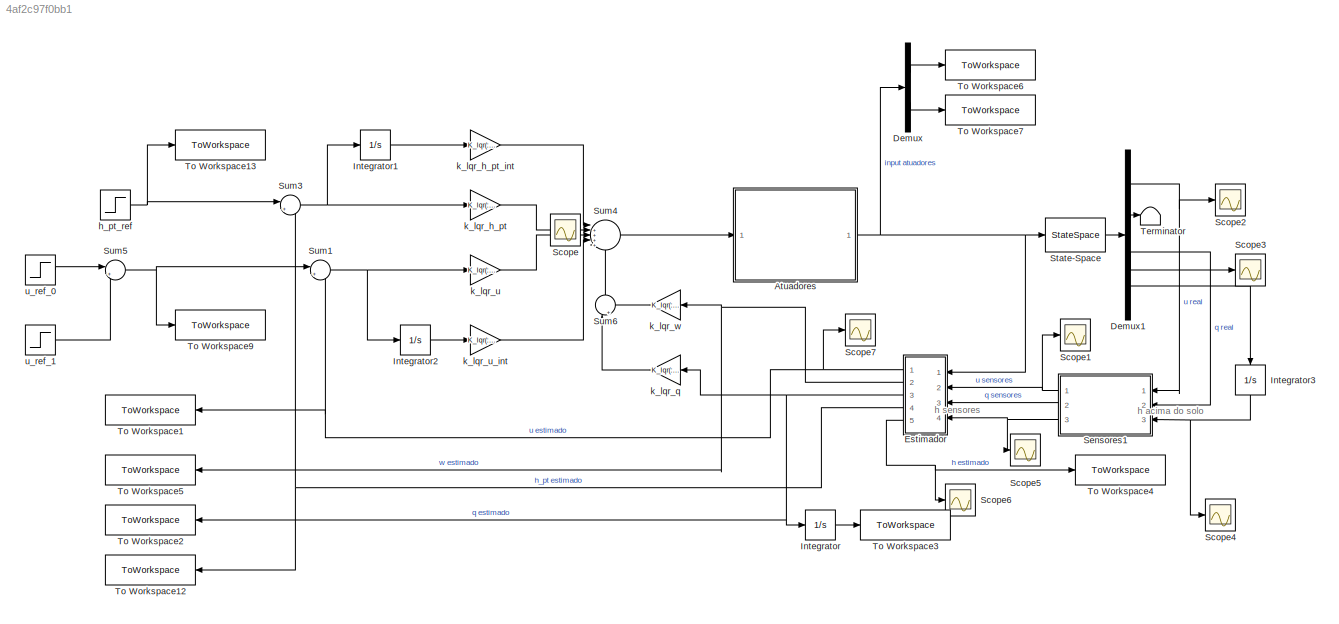
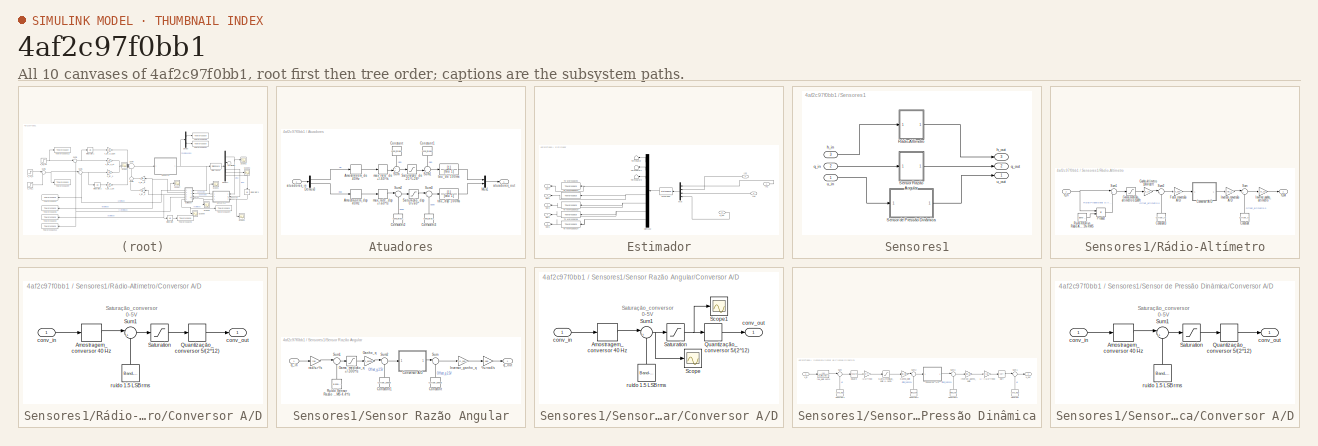
[diagram: thumbnail index - all 10 canvases of the model, root first then tree order]
MODEL slx_4af2c97f0bb1
KIND model
CONFIG AbsTol = auto
CONFIG EnableMultiTasking = off
CONFIG FixedStep = auto
CONFIG MaxStep = auto
CONFIG MinStep = auto
CONFIG RelTol = 1e-3
CONFIG SampleTimeConstraint = Unconstrained
CONFIG SolverName = VariableStepAuto
CONFIG StartTime = 0.0
CONFIG StopTime = 100
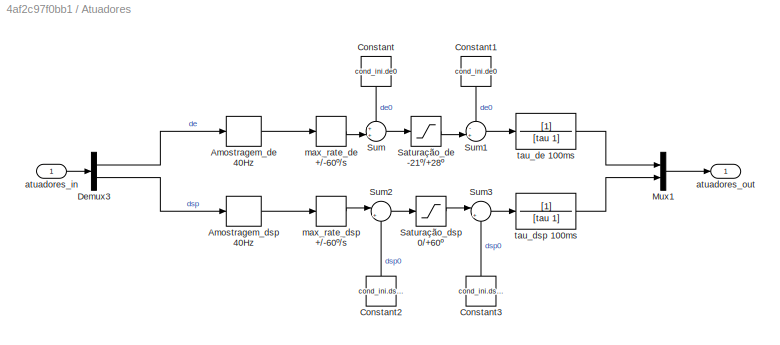
BLOCK [SubSystem] Atuadores
  Ports = [1, 1]
  RequestExecContextInheritance = off
BLOCK [RateLimiter] Atuadores/ max_rate_de +//-60º//s
  FallingSlewLimit = -vel_max_at*deg
  RisingSlewLimit = vel_max_at*deg
  SampleTimeMode = inherited
BLOCK [RateLimiter] Atuadores/ max_rate_dsp +//-60º//s
  FallingSlewLimit = -vel_max_at*deg
  RisingSlewLimit = vel_max_at*deg
  SampleTimeMode = inherited
BLOCK [ZeroOrderHold] Atuadores/Amostragem_de 40Hz
  SampleTime = 1/f_amost
BLOCK [ZeroOrderHold] Atuadores/Amostragem_dsp 40Hz
  SampleTime = 1/f_amost
BLOCK [Constant] Atuadores/Constant
  NameLocation = left
  Value = cond_ini.de0
BLOCK [Constant] Atuadores/Constant1
  NameLocation = left
  Value = cond_ini.de0
BLOCK [Constant] Atuadores/Constant2
  NameLocation = right
  Value = cond_ini.dsp0
BLOCK [Constant] Atuadores/Constant3
  NameLocation = right
  Value = cond_ini.dsp0
BLOCK [Demux] Atuadores/Demux3
  Outputs = 2
  Ports = [1, 2]
BLOCK [Mux] Atuadores/Mux1
  DisplayOption = bar
  Inputs = 2
  Ports = [2, 1]
BLOCK [Saturate] Atuadores/Saturação_de -21º//+28º
  LowerLimit = max_deflec.demin
  UpperLimit = max_deflec.demax
BLOCK [Saturate] Atuadores/Saturação_dsp 0//+60º
  LowerLimit = 0
  UpperLimit = max_deflec.spmax
BLOCK [Sum] Atuadores/Sum
  Inputs = ++|
  Ports = [2, 1]
BLOCK [Sum] Atuadores/Sum1
  Inputs = -+|
  Ports = [2, 1]
BLOCK [Sum] Atuadores/Sum2
  Inputs = |++
  Ports = [2, 1]
BLOCK [Sum] Atuadores/Sum3
  Inputs = |+-
  Ports = [2, 1]
BLOCK [Inport] Atuadores/atuadores_in
BLOCK [Outport] Atuadores/atuadores_out
BLOCK [TransferFcn] Atuadores/tau_de 100ms
  Denominator = [tau 1]
BLOCK [TransferFcn] Atuadores/tau_dsp 100ms
  Denominator = [tau 1]
BLOCK [Demux] Demux
  Outputs = 2
  Ports = [1, 2]
BLOCK [Demux] Demux1
  Ports = [1, 4]
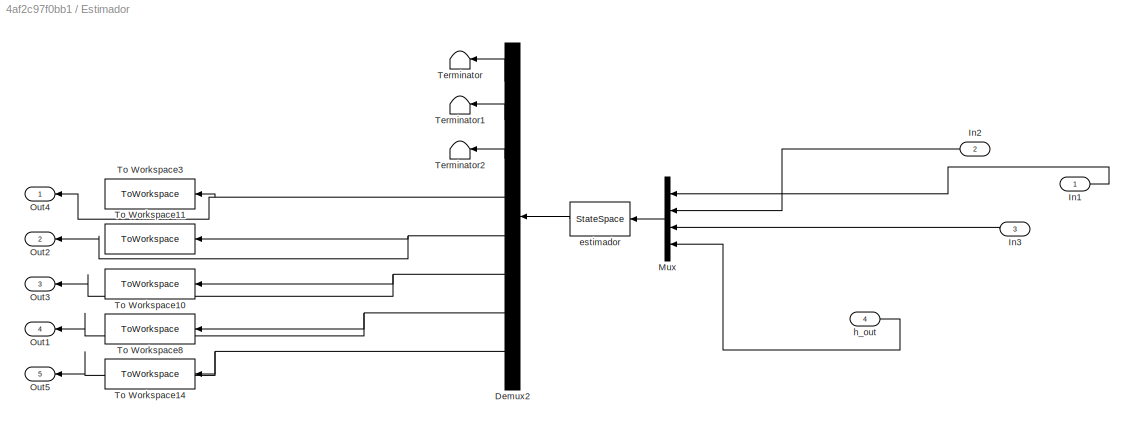
BLOCK [SubSystem] Estimador
  NameLocation = top
  Ports = [4, 5]
  RequestExecContextInheritance = off
BLOCK [Demux] Estimador/Demux2
  NameLocation = top
  Outputs = 8
  Ports = [1, 8]
BLOCK [Inport] Estimador/In1
BLOCK [Inport] Estimador/In2
  Port = 2
BLOCK [Inport] Estimador/In3
  Port = 3
BLOCK [Mux] Estimador/Mux
  DisplayOption = bar
  NameLocation = top
  Ports = [4, 1]
BLOCK [Outport] Estimador/Out1
  NameLocation = top
  Port = 4
BLOCK [Outport] Estimador/Out2
  Port = 2
BLOCK [Outport] Estimador/Out3
  Port = 3
BLOCK [Outport] Estimador/Out4
  NameLocation = top
BLOCK [Outport] Estimador/Out5
  NameLocation = top
  Port = 5
BLOCK [Terminator] Estimador/Terminator
  NameLocation = top
BLOCK [Terminator] Estimador/Terminator1
  NameLocation = top
BLOCK [Terminator] Estimador/Terminator2
  NameLocation = top
BLOCK [ToWorkspace] Estimador/To Workspace10
  FixptAsFi = on
  MaxDataPoints = inf
  NameLocation = top
  Ports = [1]
  SampleTime = -1
  VariableName = q_e
BLOCK [ToWorkspace] Estimador/To Workspace11
  FixptAsFi = on
  MaxDataPoints = inf
  NameLocation = top
  Ports = [1]
  SampleTime = -1
  VariableName = w_e
BLOCK [ToWorkspace] Estimador/To Workspace14
  FixptAsFi = on
  MaxDataPoints = inf
  NameLocation = top
  Ports = [1]
  SampleTime = -1
  VariableName = h_e
BLOCK [ToWorkspace] Estimador/To Workspace3
  FixptAsFi = on
  MaxDataPoints = inf
  NameLocation = top
  Ports = [1]
  SampleTime = -1
  VariableName = u_e
BLOCK [ToWorkspace] Estimador/To Workspace8
  FixptAsFi = on
  MaxDataPoints = inf
  NameLocation = top
  Ports = [1]
  SampleTime = -1
  VariableName = h_pt_e
BLOCK [StateSpace] Estimador/estimador
  A = ae
  B = be
  C = ce
  D = de
  InitialCondition = x0_e
  NameLocation = top
  Ports = [1, 1]
BLOCK [Inport] Estimador/h_out
  Port = 4
BLOCK [Integrator] Integrator
  InitialCondition = cond_ini.tt0
  Ports = [1, 1]
BLOCK [Integrator] Integrator1
  Ports = [1, 1]
BLOCK [Integrator] Integrator2
  Ports = [1, 1]
BLOCK [Integrator] Integrator3
  NameLocation = left
  Ports = [1, 1]
BLOCK [Scope] Scope
  Floating = off
  IOType = viewer
  NumInputPorts = 1
  Ports = []
  ScopeSpecificationString = Simulink.scopes.TimeScopeBlockCfg('CurrentConfiguration', extmgr.ConfigurationSet(extmgr.Configuration('Core','General UI',true),extmgr.Configuration('Core','Source UI',true),extmgr.Configuration('Sources','WiredSimulink',true),extmgr.Configuration('Visuals','Time Domain',true,'SerializedDisplays',{struct('MinYLimReal','-14.17435','MaxYLimReal','7.85489','YLabelReal','','MinYLimMag','0.00000','Max...<+1361ch>
BLOCK [Scope] Scope1
  Floating = off
  NumInputPorts = 1
  Ports = [1]
  ScopeSpecificationString = Simulink.scopes.TimeScopeBlockCfg('CurrentConfiguration', extmgr.ConfigurationSet(extmgr.Configuration('Core','General UI',true),extmgr.Configuration('Core','Source UI',true),extmgr.Configuration('Sources','WiredSimulink',true,'DataLoggingVariableName','ScopeData1'),extmgr.Configuration('Visuals','Time Domain',true),extmgr.Configuration('Tools','Plot Navigation',true),extmgr.Configuration('Tools',...<+40ch>
BLOCK [Scope] Scope2
  Floating = off
  NumInputPorts = 1
  Ports = [1]
  ScopeSpecificationString = Simulink.scopes.TimeScopeBlockCfg('CurrentConfiguration', extmgr.ConfigurationSet(extmgr.Configuration('Core','General UI',true),extmgr.Configuration('Core','Source UI',true),extmgr.Configuration('Sources','WiredSimulink',true,'DataLoggingVariableName','ScopeData2'),extmgr.Configuration('Visuals','Time Domain',true),extmgr.Configuration('Tools','Plot Navigation',true),extmgr.Configuration('Tools',...<+40ch>
BLOCK [Scope] Scope3
  Floating = off
  NumInputPorts = 1
  Ports = [1]
  ScopeSpecificationString = Simulink.scopes.TimeScopeBlockCfg('CurrentConfiguration', extmgr.ConfigurationSet(extmgr.Configuration('Core','General UI',true),extmgr.Configuration('Core','Source UI',true),extmgr.Configuration('Sources','WiredSimulink',true,'DataLoggingVariableName','ScopeData3'),extmgr.Configuration('Visuals','Time Domain',true),extmgr.Configuration('Tools','Plot Navigation',true),extmgr.Configuration('Tools',...<+40ch>
BLOCK [Scope] Scope4
  Floating = off
  NumInputPorts = 1
  Ports = [1]
  ScopeSpecificationString = Simulink.scopes.TimeScopeBlockCfg('CurrentConfiguration', extmgr.ConfigurationSet(extmgr.Configuration('Core','General UI',true),extmgr.Configuration('Core','Source UI',true),extmgr.Configuration('Sources','WiredSimulink',true,'DataLoggingVariableName','ScopeData4'),extmgr.Configuration('Visuals','Time Domain',true),extmgr.Configuration('Tools','Plot Navigation',true),extmgr.Configuration('Tools',...<+40ch>
BLOCK [Scope] Scope5
  Floating = off
  NumInputPorts = 1
  Ports = [1]
  ScopeSpecificationString = Simulink.scopes.TimeScopeBlockCfg('CurrentConfiguration', extmgr.ConfigurationSet(extmgr.Configuration('Core','General UI',true),extmgr.Configuration('Core','Source UI',true),extmgr.Configuration('Sources','WiredSimulink',true,'DataLoggingVariableName','ScopeData5'),extmgr.Configuration('Visuals','Time Domain',true),extmgr.Configuration('Tools','Plot Navigation',true),extmgr.Configuration('Tools',...<+40ch>
BLOCK [Scope] Scope6
  Floating = off
  NumInputPorts = 1
  Ports = [1]
  ScopeSpecificationString = Simulink.scopes.TimeScopeBlockCfg('CurrentConfiguration', extmgr.ConfigurationSet(extmgr.Configuration('Core','General UI',true),extmgr.Configuration('Core','Source UI',true),extmgr.Configuration('Sources','WiredSimulink',true,'DataLoggingVariableName','ScopeData6'),extmgr.Configuration('Visuals','Time Domain',true),extmgr.Configuration('Tools','Plot Navigation',true),extmgr.Configuration('Tools',...<+40ch>
BLOCK [Scope] Scope7
  Floating = off
  NumInputPorts = 1
  Ports = [1]
  ScopeSpecificationString = Simulink.scopes.TimeScopeBlockCfg('CurrentConfiguration', extmgr.ConfigurationSet(extmgr.Configuration('Core','General UI',true),extmgr.Configuration('Core','Source UI',true),extmgr.Configuration('Sources','WiredSimulink',true,'DataLoggingVariableName','ScopeData7'),extmgr.Configuration('Visuals','Time Domain',true),extmgr.Configuration('Tools','Plot Navigation',true),extmgr.Configuration('Tools',...<+40ch>
BLOCK [SubSystem] Sensores1
  NameLocation = top
  Ports = [3, 3]
  RequestExecContextInheritance = off
BLOCK [SubSystem] Sensores1/Rádio-Altímetro
  NameLocation = top
  Ports = [1, 1]
  RequestExecContextInheritance = off
BLOCK [Constant] Sensores1/Rádio-Altímetro/Constant
  NameLocation = right
  Value = Offset_ra
BLOCK [Constant] Sensores1/Rádio-Altímetro/Constant3
  NameLocation = right
  Value = Offset_ra
BLOCK [SubSystem] Sensores1/Rádio-Altímetro/Conversor A//D
  Ports = [1, 1]
  RequestExecContextInheritance = off
BLOCK [ZeroOrderHold] Sensores1/Rádio-Altímetro/Conversor A//D/Amostragem_conversor 40 Hz
  SampleTime = 1/f_amost
BLOCK [Quantizer] Sensores1/Rádio-Altímetro/Conversor A//D/Quantização_conversor 5//(2^12)
  QuantizationInterval = fat_quant
BLOCK [Saturate] Sensores1/Rádio-Altímetro/Conversor A//D/Saturation
  LowerLimit = conv_min
  UpperLimit = conv_max
BLOCK [Sum] Sensores1/Rádio-Altímetro/Conversor A//D/Sum1
  Inputs = |++
  Ports = [2, 1]
BLOCK [Inport] Sensores1/Rádio-Altímetro/Conversor A//D/conv_in
  NameLocation = left
BLOCK [Outport] Sensores1/Rádio-Altímetro/Conversor A//D/conv_out
  NameLocation = right
BLOCK [Reference] Sensores1/Rádio-Altímetro/Conversor A//D/ruído 1.5 LSB rms  REF=simulink/Sources/Band-Limited
White Noise
  NameLocation = right
  Ports = [0, 1]
  SourceBlock = simulink/Sources/Band-Limited\nWhite Noise
  SourceProductBaseCode = SL
  SourceType = Band-Limited White Noise.
BLOCK [Gain] Sensores1/Rádio-Altímetro/Fator_conversão A//D
  Gain = fat_conv_ra
BLOCK [Saturate] Sensores1/Rádio-Altímetro/Gama_medição_altímetro 0-1500ft
  LowerLimit = h_ra_min
  NameLocation = top
  UpperLimit = h_ra_max
BLOCK [Gain] Sensores1/Rádio-Altímetro/Ganho_altímetro 10mVdc//ft
  Gain = G_ra
BLOCK [Gain] Sensores1/Rádio-Altímetro/Inversor_conversão A//D
  Gain = 1/fat_conv_ra
BLOCK [Gain] Sensores1/Rádio-Altímetro/Inversor_ganho_altímetro
  Gain = 1/G_ra
BLOCK [Product] Sensores1/Rádio-Altímetro/Product
  Ports = [2, 1]
BLOCK [Reference] Sensores1/Rádio-Altímetro/Ruído Relativo Rádio Altimetro 1.5% RMS  REF=simulink/Sources/Band-Limited
White Noise
  NameLocation = left
  Ports = [0, 1]
  SourceBlock = simulink/Sources/Band-Limited\nWhite Noise
  SourceProductBaseCode = SL
  SourceType = Band-Limited White Noise.
BLOCK [Sum] Sensores1/Rádio-Altímetro/Sum
  Inputs = |+-
  Ports = [2, 1]
BLOCK [Sum] Sensores1/Rádio-Altímetro/Sum1
  Inputs = |++
  Ports = [2, 1]
BLOCK [Sum] Sensores1/Rádio-Altímetro/Sum2
  Inputs = |++
  Ports = [2, 1]
BLOCK [Inport] Sensores1/Rádio-Altímetro/h_in
  NameLocation = left
BLOCK [Outport] Sensores1/Rádio-Altímetro/h_out
  NameLocation = right
BLOCK [SubSystem] Sensores1/Sensor Razão Angular
  NameLocation = top
  Ports = [1, 1]
  RequestExecContextInheritance = off
BLOCK [Constant] Sensores1/Sensor Razão Angular/Constant
  NameLocation = right
  Value = Offset_sensq
BLOCK [Constant] Sensores1/Sensor Razão Angular/Constant1
  NameLocation = right
  Value = Offset_sensq
BLOCK [SubSystem] Sensores1/Sensor Razão Angular/Conversor A//D
  Ports = [1, 1]
  RequestExecContextInheritance = off
BLOCK [ZeroOrderHold] Sensores1/Sensor Razão Angular/Conversor A//D/Amostragem_conversor 40 Hz
  SampleTime = 1/f_amost
BLOCK [Quantizer] Sensores1/Sensor Razão Angular/Conversor A//D/Quantização_conversor 5//(2^12)
  QuantizationInterval = fat_quant
BLOCK [Saturate] Sensores1/Sensor Razão Angular/Conversor A//D/Saturation
  LowerLimit = conv_min
  UpperLimit = conv_max
BLOCK [Scope] Sensores1/Sensor Razão Angular/Conversor A//D/Scope
  Floating = off
  NumInputPorts = 1
  Ports = [1]
  ScopeSpecificationString = Simulink.scopes.TimeScopeBlockCfg('CurrentConfiguration', extmgr.ConfigurationSet(extmgr.Configuration('Core','General UI',true),extmgr.Configuration('Core','Source UI',true),extmgr.Configuration('Sources','WiredSimulink',true,'DataLoggingVariableName','ScopeData1'),extmgr.Configuration('Visuals','Time Domain',true,'SerializedDisplays',{struct('MinYLimReal','2.47152','MaxYLimReal','2.47222','YLabe...<+1409ch>
BLOCK [Scope] Sensores1/Sensor Razão Angular/Conversor A//D/Scope1
  Floating = off
  NumInputPorts = 1
  Ports = [1]
  ScopeSpecificationString = Simulink.scopes.TimeScopeBlockCfg('CurrentConfiguration', extmgr.ConfigurationSet(extmgr.Configuration('Core','General UI',true),extmgr.Configuration('Core','Source UI',true),extmgr.Configuration('Sources','WiredSimulink',true,'DataLoggingVariableName','ScopeData2'),extmgr.Configuration('Visuals','Time Domain',true,'SerializedDisplays',{struct('MinYLimReal','2.48787','MaxYLimReal','2.5083','YLabel...<+1412ch>
BLOCK [Sum] Sensores1/Sensor Razão Angular/Conversor A//D/Sum1
  Inputs = |++
  Ports = [2, 1]
BLOCK [Inport] Sensores1/Sensor Razão Angular/Conversor A//D/conv_in
  NameLocation = left
BLOCK [Outport] Sensores1/Sensor Razão Angular/Conversor A//D/conv_out
  NameLocation = right
BLOCK [Reference] Sensores1/Sensor Razão Angular/Conversor A//D/ruído 1.5 LSB rms  REF=simulink/Sources/Band-Limited
White Noise
  NameLocation = right
  Ports = [0, 1]
  SourceBlock = simulink/Sources/Band-Limited\nWhite Noise
  SourceProductBaseCode = SL
  SourceType = Band-Limited White Noise.
BLOCK [Saturate] Sensores1/Sensor Razão Angular/Gama_medição_q +//-300º//s
  LowerLimit = q_min_sensq
  NameLocation = top
  UpperLimit = q_max_sensq
BLOCK [Gain] Sensores1/Sensor Razão Angular/Ganho_q
  Gain = G_sensq
BLOCK [Gain] Sensores1/Sensor Razão Angular/Inversor_ganho_q
  Gain = 1/G_sensq
BLOCK [Reference] Sensores1/Sensor Razão Angular/Ruído Sensor Razão Picada RMS 4.4º//s  REF=simulink/Sources/Band-Limited
White Noise
  NameLocation = right
  Ports = [0, 1]
  SourceBlock = simulink/Sources/Band-Limited\nWhite Noise
  SourceProductBaseCode = SL
  SourceType = Band-Limited White Noise.
BLOCK [Sum] Sensores1/Sensor Razão Angular/Sum
  Inputs = |+-
  Ports = [2, 1]
BLOCK [Sum] Sensores1/Sensor Razão Angular/Sum1
  Inputs = |++
  Ports = [2, 1]
BLOCK [Sum] Sensores1/Sensor Razão Angular/Sum2
  Inputs = |++
  Ports = [2, 1]
BLOCK [Inport] Sensores1/Sensor Razão Angular/q_in
BLOCK [Outport] Sensores1/Sensor Razão Angular/q_out
BLOCK [Gain] Sensores1/Sensor Razão Angular/rad//s->º//s
  Gain = rad
BLOCK [Gain] Sensores1/Sensor Razão Angular/º//s->rad//s
  Gain = deg
BLOCK [SubSystem] Sensores1/Sensor de Pressão Dinâmica
  Ports = [1, 1]
  RequestExecContextInheritance = off
BLOCK [Gain] Sensores1/Sensor de Pressão Dinâmica/(1//2)*rho0
  Gain = (1/2)*rho0
BLOCK [Gain] Sensores1/Sensor de Pressão Dinâmica/1 // ((1//2)*rho0)
  Gain = 1/((1/2)*rho0)
BLOCK [Constant] Sensores1/Sensor de Pressão Dinâmica/Constant
  NameLocation = right
  Value = cond_ini.u0
BLOCK [Constant] Sensores1/Sensor de Pressão Dinâmica/Constant1
  NameLocation = right
  Value = cond_ini.u0
BLOCK [Constant] Sensores1/Sensor de Pressão Dinâmica/Constant2
  NameLocation = right
  Value = offset_pdin
BLOCK [Constant] Sensores1/Sensor de Pressão Dinâmica/Constant3
  NameLocation = right
  Value = offset_pdin
BLOCK [SubSystem] Sensores1/Sensor de Pressão Dinâmica/Conversor A//D
  Ports = [1, 1]
  RequestExecContextInheritance = off
BLOCK [ZeroOrderHold] Sensores1/Sensor de Pressão Dinâmica/Conversor A//D/Amostragem_conversor 40 Hz
  SampleTime = 1/f_amost
BLOCK [Quantizer] Sensores1/Sensor de Pressão Dinâmica/Conversor A//D/Quantização_conversor 5//(2^12)
  QuantizationInterval = fat_quant
BLOCK [Saturate] Sensores1/Sensor de Pressão Dinâmica/Conversor A//D/Saturation
  LowerLimit = conv_min
  UpperLimit = conv_max
BLOCK [Sum] Sensores1/Sensor de Pressão Dinâmica/Conversor A//D/Sum1
  Inputs = |++
  Ports = [2, 1]
BLOCK [Inport] Sensores1/Sensor de Pressão Dinâmica/Conversor A//D/conv_in
  NameLocation = left
BLOCK [Outport] Sensores1/Sensor de Pressão Dinâmica/Conversor A//D/conv_out
  NameLocation = right
BLOCK [Reference] Sensores1/Sensor de Pressão Dinâmica/Conversor A//D/ruído 1.5 LSB rms  REF=simulink/Sources/Band-Limited
White Noise
  NameLocation = right
  Ports = [0, 1]
  SourceBlock = simulink/Sources/Band-Limited\nWhite Noise
  SourceProductBaseCode = SL
  SourceType = Band-Limited White Noise.
BLOCK [Saturate] Sensores1/Sensor de Pressão Dinâmica/Gama_medição_pdin +//-2kPa
  LowerLimit = pdin_min
  UpperLimit = pdin_max
BLOCK [Gain] Sensores1/Sensor de Pressão Dinâmica/Ganho_pdin
  Gain = Gp_din
BLOCK [Gain] Sensores1/Sensor de Pressão Dinâmica/Inversor_ganho_pdin
  Gain = 1/Gp_din
BLOCK [Sqrt] Sensores1/Sensor de Pressão Dinâmica/Sqrt
BLOCK [Math] Sensores1/Sensor de Pressão Dinâmica/Square
  Operator = square
  Ports = [1, 1]
  SignedPower = on
BLOCK [Sum] Sensores1/Sensor de Pressão Dinâmica/Sum
  Inputs = |++
  Ports = [2, 1]
BLOCK [Sum] Sensores1/Sensor de Pressão Dinâmica/Sum1
  Inputs = |+-
  Ports = [2, 1]
BLOCK [Sum] Sensores1/Sensor de Pressão Dinâmica/Sum2
  Inputs = |++
  Ports = [2, 1]
BLOCK [Sum] Sensores1/Sensor de Pressão Dinâmica/Sum3
  Inputs = |+-
  Ports = [2, 1]
BLOCK [TransferFcn] Sensores1/Sensor de Pressão Dinâmica/tau_pdin 10ms
  Denominator = [p_din_tau 1]
BLOCK [Inport] Sensores1/Sensor de Pressão Dinâmica/u_in
BLOCK [Outport] Sensores1/Sensor de Pressão Dinâmica/u_out
BLOCK [Inport] Sensores1/h_in
  NameLocation = left
  Port = 3
BLOCK [Outport] Sensores1/h_out
  NameLocation = right
  Port = 3
BLOCK [Inport] Sensores1/q_in
  NameLocation = left
  Port = 2
BLOCK [Outport] Sensores1/q_out
  NameLocation = right
  Port = 2
BLOCK [Inport] Sensores1/u_in
  NameLocation = left
BLOCK [Outport] Sensores1/u_out
  NameLocation = right
BLOCK [StateSpace] State-Space
  A = a_h_pt
  B = b_h_pt
  C = c_h_pt
  D = d_h_pt
  InitialCondition = x0
  Ports = [1, 1]
BLOCK [Sum] Sum1
  Inputs = |+-
  Ports = [2, 1]
BLOCK [Sum] Sum3
  Inputs = |+-
  Ports = [2, 1]
BLOCK [Sum] Sum4
  Inputs = |++++-
  Ports = [5, 1]
BLOCK [Sum] Sum5
  Inputs = |++
  Ports = [2, 1]
BLOCK [Sum] Sum6
  Inputs = |++
  NameLocation = right
  Ports = [2, 1]
BLOCK [Terminator] Terminator
BLOCK [ToWorkspace] To Workspace1
  FixptAsFi = on
  MaxDataPoints = inf
  NameLocation = top
  Ports = [1]
  SampleTime = -1
  VariableName = u
BLOCK [ToWorkspace] To Workspace12
  FixptAsFi = on
  MaxDataPoints = inf
  NameLocation = top
  Ports = [1]
  SampleTime = -1
  VariableName = h_pt
BLOCK [ToWorkspace] To Workspace13
  FixptAsFi = on
  MaxDataPoints = inf
  Ports = [1]
  SampleTime = -1
  VariableName = h_pt_ref
BLOCK [ToWorkspace] To Workspace2
  FixptAsFi = on
  MaxDataPoints = inf
  NameLocation = top
  Ports = [1]
  SampleTime = -1
  VariableName = q
BLOCK [ToWorkspace] To Workspace3
  FixptAsFi = on
  MaxDataPoints = inf
  Ports = [1]
  SampleTime = -1
  VariableName = theta
BLOCK [ToWorkspace] To Workspace4
  FixptAsFi = on
  MaxDataPoints = inf
  Ports = [1]
  SampleTime = -1
  VariableName = h
BLOCK [ToWorkspace] To Workspace5
  FixptAsFi = on
  MaxDataPoints = inf
  NameLocation = top
  Ports = [1]
  SampleTime = -1
  VariableName = w
BLOCK [ToWorkspace] To Workspace6
  FixptAsFi = on
  MaxDataPoints = inf
  Ports = [1]
  SampleTime = -1
  SaveFormat = Structure With Time
  VariableName = de
BLOCK [ToWorkspace] To Workspace7
  FixptAsFi = on
  MaxDataPoints = inf
  Ports = [1]
  SampleTime = -1
  SaveFormat = Structure With Time
  VariableName = dsp
BLOCK [ToWorkspace] To Workspace9
  FixptAsFi = on
  MaxDataPoints = inf
  Ports = [1]
  SampleTime = -1
  VariableName = u_ref
BLOCK [Step] h_pt_ref
  After = h_pt_ref
  SampleTime = 0
  Time = 50
  VectorParams1D = off
BLOCK [Gain] k_lqr_h_pt
  Gain = K_lqr(:,4)
  Multiplication = Matrix(K*u)
BLOCK [Gain] k_lqr_h_pt_int
  Gain = K_lqr(:,6)
  Multiplication = Matrix(K*u)
BLOCK [Gain] k_lqr_q
  Gain = K_lqr(:,3)
  Multiplication = Matrix(K*u)
  NameLocation = top
BLOCK [Gain] k_lqr_u
  Gain = K_lqr(:,1)
  Multiplication = Matrix(K*u)
BLOCK [Gain] k_lqr_u_int
  Gain = K_lqr(:,5)
  Multiplication = Matrix(K*u)
BLOCK [Gain] k_lqr_w
  Gain = K_lqr(:,2)
  Multiplication = Matrix(K*u)
  NameLocation = top
BLOCK [Step] u_ref_0
  After = u_ref
  SampleTime = 0
  Time = 10
  VectorParams1D = off
BLOCK [Step] u_ref_1
  After = -u_ref
  SampleTime = 0
  Time = 30
ANNOTATION (root): h acima do solo
ANNOTATION (root): h sensores
ANNOTATION Sensores1/Rádio-Altímetro/Conversor A//D: Saturação_conversor 0-5V
ANNOTATION Sensores1/Sensor Razão Angular/Conversor A//D: Saturação_conversor 0-5V
ANNOTATION Sensores1/Sensor de Pressão Dinâmica/Conversor A//D: Saturação_conversor 0-5V
LINE Atuadores/ max_rate_de +//-60º//s:1 -> Atuadores/Sum:2
LINE Atuadores/ max_rate_dsp +//-60º//s:1 -> Atuadores/Sum2:1
LINE Atuadores/Amostragem_de 40Hz:1 -> Atuadores/ max_rate_de +//-60º//s:1
LINE Atuadores/Amostragem_dsp 40Hz:1 -> Atuadores/ max_rate_dsp +//-60º//s:1
LINE Atuadores/Constant1:1 -> Atuadores/Sum1:1
LINE Atuadores/Constant2:1 -> Atuadores/Sum2:2
LINE Atuadores/Constant3:1 -> Atuadores/Sum3:2
LINE Atuadores/Constant:1 -> Atuadores/Sum:1
LINE Atuadores/Demux3:1 -> Atuadores/Amostragem_de 40Hz:1
LINE Atuadores/Demux3:2 -> Atuadores/Amostragem_dsp 40Hz:1
LINE Atuadores/Mux1:1 -> Atuadores/atuadores_out:1
LINE Atuadores/Saturação_de -21º//+28º:1 -> Atuadores/Sum1:2
LINE Atuadores/Saturação_dsp 0//+60º:1 -> Atuadores/Sum3:1
LINE Atuadores/Sum1:1 -> Atuadores/tau_de 100ms:1
LINE Atuadores/Sum2:1 -> Atuadores/Saturação_dsp 0//+60º:1
LINE Atuadores/Sum3:1 -> Atuadores/tau_dsp 100ms:1
LINE Atuadores/Sum:1 -> Atuadores/Saturação_de -21º//+28º:1
LINE Atuadores/atuadores_in:1 -> Atuadores/Demux3:1
LINE Atuadores/tau_de 100ms:1 -> Atuadores/Mux1:1
LINE Atuadores/tau_dsp 100ms:1 -> Atuadores/Mux1:2
NET Atuadores:1 -> Demux:1, Estimador:1, State-Space:1
NET Demux1:1 -> Scope2:1, Sensores1:1
LINE Demux1:2 -> Terminator:1
NET Demux1:3 -> Scope3:1, Sensores1:2
LINE Demux1:4 -> Integrator3:1
LINE Demux:1 -> To Workspace6:1
LINE Demux:2 -> To Workspace7:1
LINE Estimador/Demux2:1 -> Estimador/Terminator:1
LINE Estimador/Demux2:2 -> Estimador/Terminator1:1
LINE Estimador/Demux2:3 -> Estimador/Terminator2:1
NET Estimador/Demux2:4 -> Estimador/Out4:1, Estimador/To Workspace3:1
NET Estimador/Demux2:5 -> Estimador/Out2:1, Estimador/To Workspace11:1
NET Estimador/Demux2:6 -> Estimador/Out3:1, Estimador/To Workspace10:1
NET Estimador/Demux2:7 -> Estimador/Out1:1, Estimador/To Workspace8:1
NET Estimador/Demux2:8 -> Estimador/Out5:1, Estimador/To Workspace14:1
LINE Estimador/In1:1 -> Estimador/Mux:1
LINE Estimador/In2:1 -> Estimador/Mux:2
LINE Estimador/In3:1 -> Estimador/Mux:3
LINE Estimador/Mux:1 -> Estimador/estimador:1
LINE Estimador/estimador:1 -> Estimador/Demux2:1
LINE Estimador/h_out:1 -> Estimador/Mux:4
NET Estimador:1 -> Scope7:1, Sum1:2, To Workspace1:1
NET Estimador:2 -> To Workspace5:1, k_lqr_w:1
NET Estimador:3 -> Integrator:1, To Workspace2:1, k_lqr_q:1
NET Estimador:4 -> Sum3:2, To Workspace12:1
NET Estimador:5 -> Scope6:1, To Workspace4:1
LINE Integrator1:1 -> k_lqr_h_pt_int:1
LINE Integrator2:1 -> k_lqr_u_int:1
NET Integrator3:1 -> Scope4:1, Sensores1:3
LINE Integrator:1 -> To Workspace3:1
LINE Sensores1/Rádio-Altímetro/Constant3:1 -> Sensores1/Rádio-Altímetro/Sum2:2
LINE Sensores1/Rádio-Altímetro/Constant:1 -> Sensores1/Rádio-Altímetro/Sum:2
LINE Sensores1/Rádio-Altímetro/Conversor A//D/Amostragem_conversor 40 Hz:1 -> Sensores1/Rádio-Altímetro/Conversor A//D/Sum1:1
LINE Sensores1/Rádio-Altímetro/Conversor A//D/Quantização_conversor 5//(2^12):1 -> Sensores1/Rádio-Altímetro/Conversor A//D/conv_out:1
LINE Sensores1/Rádio-Altímetro/Conversor A//D/Saturation:1 -> Sensores1/Rádio-Altímetro/Conversor A//D/Quantização_conversor 5//(2^12):1
LINE Sensores1/Rádio-Altímetro/Conversor A//D/Sum1:1 -> Sensores1/Rádio-Altímetro/Conversor A//D/Saturation:1
LINE Sensores1/Rádio-Altímetro/Conversor A//D/conv_in:1 -> Sensores1/Rádio-Altímetro/Conversor A//D/Amostragem_conversor 40 Hz:1
LINE Sensores1/Rádio-Altímetro/Conversor A//D/ruído 1.5 LSB rms:1 -> Sensores1/Rádio-Altímetro/Conversor A//D/Sum1:2
LINE Sensores1/Rádio-Altímetro/Conversor A//D:1 -> Sensores1/Rádio-Altímetro/Inversor_conversão A//D:1
LINE Sensores1/Rádio-Altímetro/Fator_conversão A//D:1 -> Sensores1/Rádio-Altímetro/Conversor A//D:1
LINE Sensores1/Rádio-Altímetro/Gama_medição_altímetro 0-1500ft:1 -> Sensores1/Rádio-Altímetro/Ganho_altímetro 10mVdc//ft:1
LINE Sensores1/Rádio-Altímetro/Ganho_altímetro 10mVdc//ft:1 -> Sensores1/Rádio-Altímetro/Sum2:1
LINE Sensores1/Rádio-Altímetro/Inversor_conversão A//D:1 -> Sensores1/Rádio-Altímetro/Sum:1
LINE Sensores1/Rádio-Altímetro/Inversor_ganho_altímetro:1 -> Sensores1/Rádio-Altímetro/h_out:1
LINE Sensores1/Rádio-Altímetro/Product:1 -> Sensores1/Rádio-Altímetro/Sum1:2
LINE Sensores1/Rádio-Altímetro/Ruído Relativo Rádio Altimetro 1.5% RMS:1 -> Sensores1/Rádio-Altímetro/Product:2
LINE Sensores1/Rádio-Altímetro/Sum1:1 -> Sensores1/Rádio-Altímetro/Gama_medição_altímetro 0-1500ft:1
LINE Sensores1/Rádio-Altímetro/Sum2:1 -> Sensores1/Rádio-Altímetro/Fator_conversão A//D:1
LINE Sensores1/Rádio-Altímetro/Sum:1 -> Sensores1/Rádio-Altímetro/Inversor_ganho_altímetro:1
NET Sensores1/Rádio-Altímetro/h_in:1 -> Sensores1/Rádio-Altímetro/Product:1, Sensores1/Rádio-Altímetro/Sum1:1
LINE Sensores1/Rádio-Altímetro:1 -> Sensores1/h_out:1
LINE Sensores1/Sensor Razão Angular/Constant1:1 -> Sensores1/Sensor Razão Angular/Sum2:2
LINE Sensores1/Sensor Razão Angular/Constant:1 -> Sensores1/Sensor Razão Angular/Sum:2
LINE Sensores1/Sensor Razão Angular/Conversor A//D/Amostragem_conversor 40 Hz:1 -> Sensores1/Sensor Razão Angular/Conversor A//D/Sum1:1
LINE Sensores1/Sensor Razão Angular/Conversor A//D/Quantização_conversor 5//(2^12):1 -> Sensores1/Sensor Razão Angular/Conversor A//D/conv_out:1
NET Sensores1/Sensor Razão Angular/Conversor A//D/Saturation:1 -> Sensores1/Sensor Razão Angular/Conversor A//D/Quantização_conversor 5//(2^12):1, Sensores1/Sensor Razão Angular/Conversor A//D/Scope1:1
NET Sensores1/Sensor Razão Angular/Conversor A//D/Sum1:1 -> Sensores1/Sensor Razão Angular/Conversor A//D/Saturation:1, Sensores1/Sensor Razão Angular/Conversor A//D/Scope:1
LINE Sensores1/Sensor Razão Angular/Conversor A//D/conv_in:1 -> Sensores1/Sensor Razão Angular/Conversor A//D/Amostragem_conversor 40 Hz:1
LINE Sensores1/Sensor Razão Angular/Conversor A//D/ruído 1.5 LSB rms:1 -> Sensores1/Sensor Razão Angular/Conversor A//D/Sum1:2
LINE Sensores1/Sensor Razão Angular/Conversor A//D:1 -> Sensores1/Sensor Razão Angular/Sum:1
LINE Sensores1/Sensor Razão Angular/Gama_medição_q +//-300º//s:1 -> Sensores1/Sensor Razão Angular/Ganho_q:1
LINE Sensores1/Sensor Razão Angular/Ganho_q:1 -> Sensores1/Sensor Razão Angular/Sum2:1
LINE Sensores1/Sensor Razão Angular/Inversor_ganho_q:1 -> Sensores1/Sensor Razão Angular/º//s->rad//s:1
LINE Sensores1/Sensor Razão Angular/Ruído Sensor Razão Picada RMS 4.4º//s:1 -> Sensores1/Sensor Razão Angular/Sum1:2
LINE Sensores1/Sensor Razão Angular/Sum1:1 -> Sensores1/Sensor Razão Angular/Gama_medição_q +//-300º//s:1
LINE Sensores1/Sensor Razão Angular/Sum2:1 -> Sensores1/Sensor Razão Angular/Conversor A//D:1
LINE Sensores1/Sensor Razão Angular/Sum:1 -> Sensores1/Sensor Razão Angular/Inversor_ganho_q:1
LINE Sensores1/Sensor Razão Angular/q_in:1 -> Sensores1/Sensor Razão Angular/rad//s->º//s:1
LINE Sensores1/Sensor Razão Angular/rad//s->º//s:1 -> Sensores1/Sensor Razão Angular/Sum1:1
LINE Sensores1/Sensor Razão Angular/º//s->rad//s:1 -> Sensores1/Sensor Razão Angular/q_out:1
LINE Sensores1/Sensor Razão Angular:1 -> Sensores1/q_out:1
LINE Sensores1/Sensor de Pressão Dinâmica/(1//2)*rho0:1 -> Sensores1/Sensor de Pressão Dinâmica/Gama_medição_pdin +//-2kPa:1
LINE Sensores1/Sensor de Pressão Dinâmica/1 // ((1//2)*rho0):1 -> Sensores1/Sensor de Pressão Dinâmica/Sqrt:1
LINE Sensores1/Sensor de Pressão Dinâmica/Constant1:1 -> Sensores1/Sensor de Pressão Dinâmica/Sum:2
LINE Sensores1/Sensor de Pressão Dinâmica/Constant2:1 -> Sensores1/Sensor de Pressão Dinâmica/Sum2:2
LINE Sensores1/Sensor de Pressão Dinâmica/Constant3:1 -> Sensores1/Sensor de Pressão Dinâmica/Sum3:2
LINE Sensores1/Sensor de Pressão Dinâmica/Constant:1 -> Sensores1/Sensor de Pressão Dinâmica/Sum1:2
LINE Sensores1/Sensor de Pressão Dinâmica/Conversor A//D/Amostragem_conversor 40 Hz:1 -> Sensores1/Sensor de Pressão Dinâmica/Conversor A//D/Sum1:1
LINE Sensores1/Sensor de Pressão Dinâmica/Conversor A//D/Quantização_conversor 5//(2^12):1 -> Sensores1/Sensor de Pressão Dinâmica/Conversor A//D/conv_out:1
LINE Sensores1/Sensor de Pressão Dinâmica/Conversor A//D/Saturation:1 -> Sensores1/Sensor de Pressão Dinâmica/Conversor A//D/Quantização_conversor 5//(2^12):1
LINE Sensores1/Sensor de Pressão Dinâmica/Conversor A//D/Sum1:1 -> Sensores1/Sensor de Pressão Dinâmica/Conversor A//D/Saturation:1
LINE Sensores1/Sensor de Pressão Dinâmica/Conversor A//D/conv_in:1 -> Sensores1/Sensor de Pressão Dinâmica/Conversor A//D/Amostragem_conversor 40 Hz:1
LINE Sensores1/Sensor de Pressão Dinâmica/Conversor A//D/ruído 1.5 LSB rms:1 -> Sensores1/Sensor de Pressão Dinâmica/Conversor A//D/Sum1:2
LINE Sensores1/Sensor de Pressão Dinâmica/Conversor A//D:1 -> Sensores1/Sensor de Pressão Dinâmica/Sum3:1
LINE Sensores1/Sensor de Pressão Dinâmica/Gama_medição_pdin +//-2kPa:1 -> Sensores1/Sensor de Pressão Dinâmica/Ganho_pdin:1
LINE Sensores1/Sensor de Pressão Dinâmica/Ganho_pdin:1 -> Sensores1/Sensor de Pressão Dinâmica/Sum2:1
LINE Sensores1/Sensor de Pressão Dinâmica/Inversor_ganho_pdin:1 -> Sensores1/Sensor de Pressão Dinâmica/1 // ((1//2)*rho0):1
LINE Sensores1/Sensor de Pressão Dinâmica/Sqrt:1 -> Sensores1/Sensor de Pressão Dinâmica/Sum1:1
LINE Sensores1/Sensor de Pressão Dinâmica/Square:1 -> Sensores1/Sensor de Pressão Dinâmica/(1//2)*rho0:1
LINE Sensores1/Sensor de Pressão Dinâmica/Sum1:1 -> Sensores1/Sensor de Pressão Dinâmica/u_out:1
LINE Sensores1/Sensor de Pressão Dinâmica/Sum2:1 -> Sensores1/Sensor de Pressão Dinâmica/Conversor A//D:1
LINE Sensores1/Sensor de Pressão Dinâmica/Sum3:1 -> Sensores1/Sensor de Pressão Dinâmica/Inversor_ganho_pdin:1
LINE Sensores1/Sensor de Pressão Dinâmica/Sum:1 -> Sensores1/Sensor de Pressão Dinâmica/Square:1
LINE Sensores1/Sensor de Pressão Dinâmica/tau_pdin 10ms:1 -> Sensores1/Sensor de Pressão Dinâmica/Sum:1
LINE Sensores1/Sensor de Pressão Dinâmica/u_in:1 -> Sensores1/Sensor de Pressão Dinâmica/tau_pdin 10ms:1
LINE Sensores1/Sensor de Pressão Dinâmica:1 -> Sensores1/u_out:1
LINE Sensores1/h_in:1 -> Sensores1/Rádio-Altímetro:1
LINE Sensores1/q_in:1 -> Sensores1/Sensor Razão Angular:1
LINE Sensores1/u_in:1 -> Sensores1/Sensor de Pressão Dinâmica:1
NET Sensores1:1 -> Estimador:2, Scope1:1
LINE Sensores1:2 -> Estimador:3
NET Sensores1:3 -> Estimador:4, Scope5:1
LINE State-Space:1 -> Demux1:1
NET Sum1:1 -> Integrator2:1, k_lqr_u:1
NET Sum3:1 -> Integrator1:1, k_lqr_h_pt:1
LINE Sum4:1 -> Atuadores:1
NET Sum5:1 -> Sum1:1, To Workspace9:1
LINE Sum6:1 -> Sum4:5
NET h_pt_ref:1 -> Sum3:1, To Workspace13:1
LINE k_lqr_h_pt:1 -> Sum4:2
LINE k_lqr_h_pt_int:1 -> Sum4:1
LINE k_lqr_q:1 -> Sum6:1
LINE k_lqr_u:1 -> Sum4:3
LINE k_lqr_u_int:1 -> Sum4:4
LINE k_lqr_w:1 -> Sum6:2
LINE u_ref_0:1 -> Sum5:1
LINE u_ref_1:1 -> Sum5:2
note: NET lines group one-source signal fan-out (src -> all destinations, sorted); 1:1 wires keep LINE
